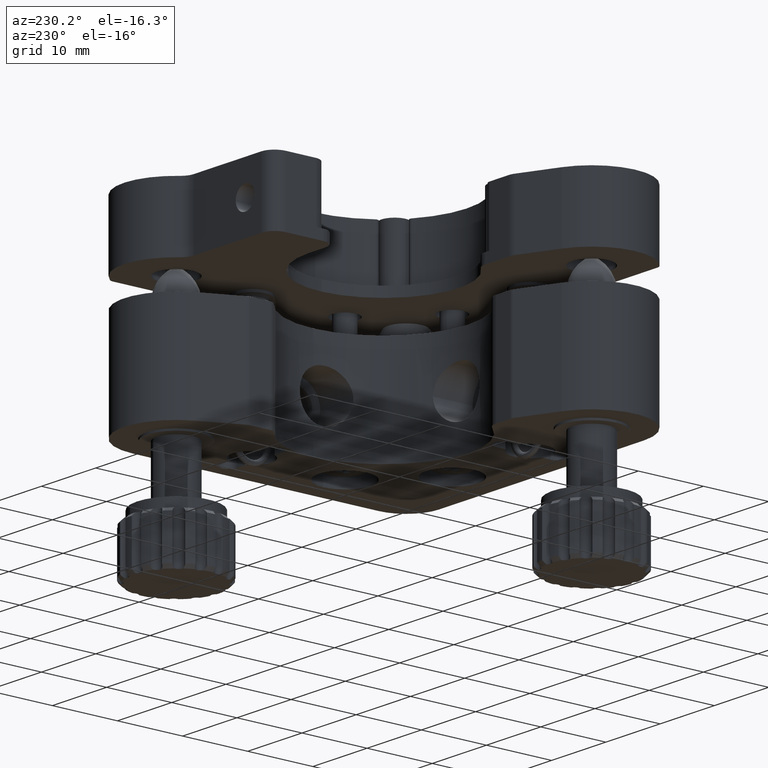
[diagram: clean part render]
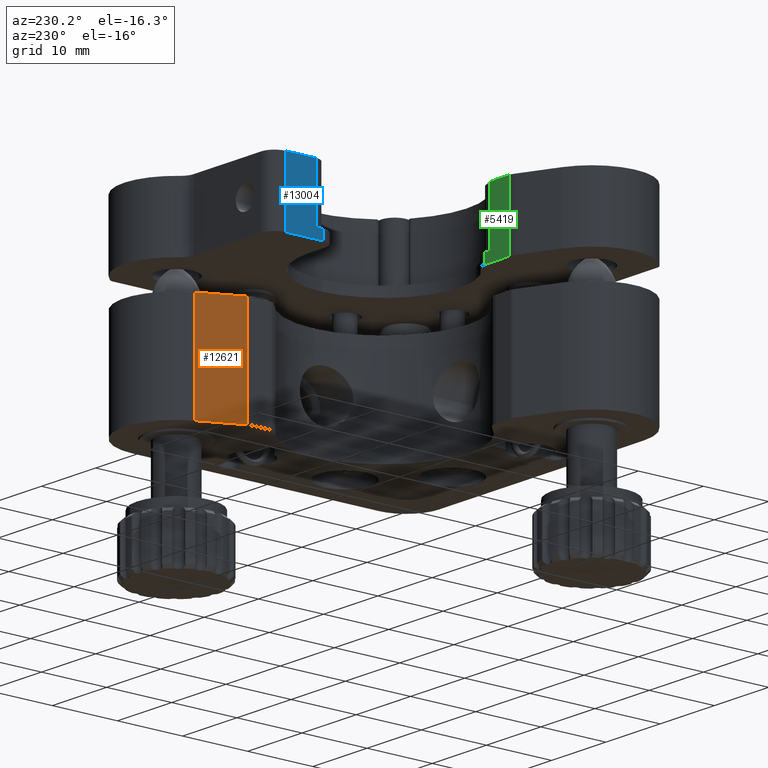
[diagram: same view with three faces highlighted in distinct colors, each labeled with its STEP entity id]
A machine part, auxiliary view with three faces highlighted in distinct colors.
Their STEP definitions:

[orange] entity #12621 — the highlighted planar face has unit normal (-0.9135, 0.4067, 0).
#315 = VERTEX_POINT ( 'NONE', #25072 ) ;
#524 = EDGE_CURVE ( 'NONE', #12687, #24036, #21961, .T. ) ;
#1168 = CARTESIAN_POINT ( 'NONE',  ( 24.78039112547795500, 56.12034572280080600, 37.86366457255799400 ) ) ;
#3830 = DIRECTION ( 'NONE',  ( -0.4067366430758018200, -0.9135454576426002000, -0.0000000000000000000 ) ) ;
#4767 = CARTESIAN_POINT ( 'NONE',  ( 27.38557292197974700, 61.97167984044965300, 22.06366457255799000 ) ) ;
#4864 = ORIENTED_EDGE ( 'NONE', *, *, #12959, .T. ) ;
#5148 = EDGE_CURVE ( 'NONE', #315, #12687, #9177, .T. ) ;
#9177 = LINE ( 'NONE', #17924, #32911 ) ;
#9242 = ORIENTED_EDGE ( 'NONE', *, *, #33659, .T. ) ;
#9769 = ORIENTED_EDGE ( 'NONE', *, *, #524, .F. ) ;
#10544 = DIRECTION ( 'NONE',  ( -0.4067366430758017600, -0.9135454576426002000, 0.0000000000000000000 ) ) ;
#12621 = ADVANCED_FACE ( 'NONE', ( #33894 ), #14204, .T. ) ;
#12687 = VERTEX_POINT ( 'NONE', #27786 ) ;
#12959 = EDGE_CURVE ( 'NONE', #18822, #24036, #15041, .T. ) ;
#14166 = VECTOR ( 'NONE', #23000, 1000.000000000000000 ) ;
#14204 = PLANE ( 'NONE',  #20791 ) ;
#15041 = LINE ( 'NONE', #23582, #17425 ) ;
#17001 = CARTESIAN_POINT ( 'NONE',  ( 27.38557292197974700, 61.97167984044965300, 37.86366457255799400 ) ) ;
#17425 = VECTOR ( 'NONE', #10544, 1000.000000000000200 ) ;
#17924 = CARTESIAN_POINT ( 'NONE',  ( 24.78039112547795500, 56.12034572280080600, 37.86366457255799400 ) ) ;
#17956 = DIRECTION ( 'NONE',  ( -0.4067366430758017600, -0.9135454576426002000, 0.0000000000000000000 ) ) ;
#18822 = VERTEX_POINT ( 'NONE', #4767 ) ;
#19583 = DIRECTION ( 'NONE',  ( -0.9135454576426002000, 0.4067366430758018200, 0.0000000000000000000 ) ) ;
#19762 = DIRECTION ( 'NONE',  ( 0.0000000000000000000, 0.0000000000000000000, -1.000000000000000000 ) ) ;
#20791 = AXIS2_PLACEMENT_3D ( 'NONE', #1168, #19583, #3830 ) ;
#21961 = LINE ( 'NONE', #24895, #14166 ) ;
#22807 = ORIENTED_EDGE ( 'NONE', *, *, #5148, .F. ) ;
#23000 = DIRECTION ( 'NONE',  ( 0.0000000000000000000, 0.0000000000000000000, -1.000000000000000000 ) ) ;
#23582 = CARTESIAN_POINT ( 'NONE',  ( 24.78039112547795500, 56.12034572280080600, 22.06366457255799000 ) ) ;
#23982 = CARTESIAN_POINT ( 'NONE',  ( 24.78039112547795500, 56.12034572280080600, 22.06366457255799000 ) ) ;
#24036 = VERTEX_POINT ( 'NONE', #23982 ) ;
#24895 = CARTESIAN_POINT ( 'NONE',  ( 24.78039112547795500, 56.12034572280080600, 37.86366457255799400 ) ) ;
#25072 = CARTESIAN_POINT ( 'NONE',  ( 27.38557292197974700, 61.97167984044965300, 37.86366457255799400 ) ) ;
#26810 = VECTOR ( 'NONE', #19762, 1000.000000000000000 ) ;
#27786 = CARTESIAN_POINT ( 'NONE',  ( 24.78039112547795500, 56.12034572280080600, 37.86366457255799400 ) ) ;
#32911 = VECTOR ( 'NONE', #17956, 1000.000000000000200 ) ;
#33659 = EDGE_CURVE ( 'NONE', #315, #18822, #33760, .T. ) ;
#33760 = LINE ( 'NONE', #17001, #26810 ) ;
#33894 = FACE_OUTER_BOUND ( 'NONE', #33944, .T. ) ;
#33944 = EDGE_LOOP ( 'NONE', ( #4864, #9769, #22807, #9242 ) ) ;

[blue] entity #13004 — the highlighted planar face has unit normal (-1, 0, 0).
#1266 = CARTESIAN_POINT ( 'NONE',  ( 12.19393658312054800, 54.91778669584324700, 42.06366457255799000 ) ) ;
#1354 = VECTOR ( 'NONE', #23221, 1000.000000000000000 ) ;
#2173 = DIRECTION ( 'NONE',  ( -0.0000000000000000000, -0.0000000000000000000, 1.000000000000000000 ) ) ;
#2564 = EDGE_CURVE ( 'NONE', #17787, #13961, #25487, .T. ) ;
#2963 = DIRECTION ( 'NONE',  ( 0.0000000000000000000, 0.0000000000000000000, 1.000000000000000000 ) ) ;
#3545 = EDGE_CURVE ( 'NONE', #21243, #19447, #9602, .T. ) ;
#3687 = EDGE_CURVE ( 'NONE', #26530, #19447, #5486, .T. ) ;
#3722 = VECTOR ( 'NONE', #15012, 1000.000000000000000 ) ;
#4416 = ORIENTED_EDGE ( 'NONE', *, *, #21665, .F. ) ;
#4837 = CARTESIAN_POINT ( 'NONE',  ( 12.19393658312054800, 55.91778669584325500, 43.56366457255799000 ) ) ;
#5486 = LINE ( 'NONE', #32552, #31680 ) ;
#6354 = CARTESIAN_POINT ( 'NONE',  ( 12.19393658312055000, 60.71778669584323800, 52.06366457255799000 ) ) ;
#7376 = EDGE_LOOP ( 'NONE', ( #21430, #4416, #30709, #31416, #19062, #14563 ) ) ;
#7843 = CARTESIAN_POINT ( 'NONE',  ( 12.19393658312055000, 60.71778669584323800, 42.06366457255799000 ) ) ;
#8403 = LINE ( 'NONE', #7843, #16249 ) ;
#8747 = VECTOR ( 'NONE', #2173, 1000.000000000000000 ) ;
#9224 = CARTESIAN_POINT ( 'NONE',  ( 12.19393658312054800, 55.91778669584325500, 43.56366457255799000 ) ) ;
#9602 = LINE ( 'NONE', #4837, #29641 ) ;
#10756 = CARTESIAN_POINT ( 'NONE',  ( 12.19393658312055000, 60.71778669584323800, 42.06366457255799000 ) ) ;
#13004 = ADVANCED_FACE ( 'NONE', ( #23605 ), #33972, .T. ) ;
#13277 = CARTESIAN_POINT ( 'NONE',  ( 12.19393658312055000, 60.71778669584323800, 42.06366457255799000 ) ) ;
#13390 = DIRECTION ( 'NONE',  ( 0.0000000000000000000, 0.0000000000000000000, 1.000000000000000000 ) ) ;
#13516 = CARTESIAN_POINT ( 'NONE',  ( 12.19393658312054800, 55.91778669584325500, 52.06366457255799000 ) ) ;
#13712 = VERTEX_POINT ( 'NONE', #13516 ) ;
#13961 = VERTEX_POINT ( 'NONE', #6354 ) ;
#14563 = ORIENTED_EDGE ( 'NONE', *, *, #3545, .F. ) ;
#15012 = DIRECTION ( 'NONE',  ( 0.0000000000000000000, 0.0000000000000000000, 1.000000000000000000 ) ) ;
#15799 = LINE ( 'NONE', #33559, #8747 ) ;
#16249 = VECTOR ( 'NONE', #26185, 1000.000000000000000 ) ;
#17787 = VERTEX_POINT ( 'NONE', #24786 ) ;
#19062 = ORIENTED_EDGE ( 'NONE', *, *, #3687, .T. ) ;
#19447 = VERTEX_POINT ( 'NONE', #19770 ) ;
#19770 = CARTESIAN_POINT ( 'NONE',  ( 12.19393658312054800, 54.91778669584324700, 43.56366457255799000 ) ) ;
#21243 = VERTEX_POINT ( 'NONE', #9224 ) ;
#21430 = ORIENTED_EDGE ( 'NONE', *, *, #27504, .T. ) ;
#21532 = LINE ( 'NONE', #23327, #1354 ) ;
#21665 = EDGE_CURVE ( 'NONE', #13961, #13712, #21532, .T. ) ;
#23221 = DIRECTION ( 'NONE',  ( 0.0000000000000000000, -1.000000000000000000, 0.0000000000000000000 ) ) ;
#23327 = CARTESIAN_POINT ( 'NONE',  ( 12.19393658312055000, 60.71778669584323800, 52.06366457255799000 ) ) ;
#23605 = FACE_OUTER_BOUND ( 'NONE', #7376, .T. ) ;
#24786 = CARTESIAN_POINT ( 'NONE',  ( 12.19393658312055000, 60.71778669584323800, 42.06366457255799000 ) ) ;
#25487 = LINE ( 'NONE', #13277, #3722 ) ;
#26185 = DIRECTION ( 'NONE',  ( 0.0000000000000000000, -1.000000000000000000, 0.0000000000000000000 ) ) ;
#26490 = AXIS2_PLACEMENT_3D ( 'NONE', #10756, #29041, #13390 ) ;
#26530 = VERTEX_POINT ( 'NONE', #1266 ) ;
#26865 = EDGE_CURVE ( 'NONE', #17787, #26530, #8403, .T. ) ;
#27504 = EDGE_CURVE ( 'NONE', #21243, #13712, #15799, .T. ) ;
#29041 = DIRECTION ( 'NONE',  ( -1.000000000000000000, 0.0000000000000000000, 0.0000000000000000000 ) ) ;
#29641 = VECTOR ( 'NONE', #29976, 1000.000000000000000 ) ;
#29976 = DIRECTION ( 'NONE',  ( 0.0000000000000000000, -1.000000000000000000, 0.0000000000000000000 ) ) ;
#30709 = ORIENTED_EDGE ( 'NONE', *, *, #2564, .F. ) ;
#31416 = ORIENTED_EDGE ( 'NONE', *, *, #26865, .T. ) ;
#31680 = VECTOR ( 'NONE', #2963, 1000.000000000000000 ) ;
#32552 = CARTESIAN_POINT ( 'NONE',  ( 12.19393658312054800, 54.91778669584324700, 42.06366457255799000 ) ) ;
#33559 = CARTESIAN_POINT ( 'NONE',  ( 12.19393658312054800, 55.91778669584325500, 43.56366457255799000 ) ) ;
#33972 = PLANE ( 'NONE',  #26490 ) ;

[green] entity #5419 — the highlighted planar face has unit normal (0, 1, -0).
#656 = ORIENTED_EDGE ( 'NONE', *, *, #19734, .F. ) ;
#1456 = DIRECTION ( 'NONE',  ( -1.000000000000000000, 7.724296037066135200E-016, 0.0000000000000000000 ) ) ;
#2767 = ORIENTED_EDGE ( 'NONE', *, *, #30878, .T. ) ;
#3143 = VERTEX_POINT ( 'NONE', #29475 ) ;
#3358 = FACE_OUTER_BOUND ( 'NONE', #11136, .T. ) ;
#4135 = VERTEX_POINT ( 'NONE', #9684 ) ;
#4946 = VERTEX_POINT ( 'NONE', #18298 ) ;
#4995 = CARTESIAN_POINT ( 'NONE',  ( 6.707756990591014400, 33.91778669584324700, 43.56366457255799000 ) ) ;
#5044 = LINE ( 'NONE', #12891, #32881 ) ;
#5419 = ADVANCED_FACE ( 'NONE', ( #3358 ), #31681, .T. ) ;
#5886 = ORIENTED_EDGE ( 'NONE', *, *, #19302, .F. ) ;
#5945 = LINE ( 'NONE', #31153, #22375 ) ;
#6048 = VECTOR ( 'NONE', #7667, 1000.000000000000000 ) ;
#6444 = CARTESIAN_POINT ( 'NONE',  ( 7.602273536495104600, 33.91778669584324700, 42.06366457255799000 ) ) ;
#7667 = DIRECTION ( 'NONE',  ( 0.0000000000000000000, 0.0000000000000000000, 1.000000000000000000 ) ) ;
#8040 = VECTOR ( 'NONE', #27418, 1000.000000000000000 ) ;
#8237 = ORIENTED_EDGE ( 'NONE', *, *, #33287, .F. ) ;
#8839 = LINE ( 'NONE', #6444, #8040 ) ;
#9006 = LINE ( 'NONE', #14587, #14345 ) ;
#9684 = CARTESIAN_POINT ( 'NONE',  ( 3.110670760908852600, 33.91778669584324700, 52.06366457255799000 ) ) ;
#11136 = EDGE_LOOP ( 'NONE', ( #13165, #8237, #656, #5886, #2767, #30020 ) ) ;
#12340 = EDGE_CURVE ( 'NONE', #22472, #4135, #20026, .T. ) ;
#12755 = VERTEX_POINT ( 'NONE', #27897 ) ;
#12891 = CARTESIAN_POINT ( 'NONE',  ( 7.602273536495104600, 33.91778669584324700, 52.06366457255799000 ) ) ;
#12911 = DIRECTION ( 'NONE',  ( -1.000000000000000000, -0.0000000000000000000, -0.0000000000000000000 ) ) ;
#13165 = ORIENTED_EDGE ( 'NONE', *, *, #33882, .F. ) ;
#14345 = VECTOR ( 'NONE', #1456, 1000.000000000000000 ) ;
#14587 = CARTESIAN_POINT ( 'NONE',  ( 7.602273536495104600, 33.91778669584324700, 42.06366457255799000 ) ) ;
#15542 = DIRECTION ( 'NONE',  ( -1.000000000000000000, 7.724296037066135200E-016, 0.0000000000000000000 ) ) ;
#15822 = AXIS2_PLACEMENT_3D ( 'NONE', #30286, #30177, #31455 ) ;
#15871 = CARTESIAN_POINT ( 'NONE',  ( 3.110670760908852600, 33.91778669584324700, 42.06366457255799000 ) ) ;
#17219 = VERTEX_POINT ( 'NONE', #30056 ) ;
#18298 = CARTESIAN_POINT ( 'NONE',  ( 7.602273536495104600, 33.91778669584324700, 43.56366457255799000 ) ) ;
#19302 = EDGE_CURVE ( 'NONE', #12755, #4946, #8839, .T. ) ;
#19734 = EDGE_CURVE ( 'NONE', #4946, #17219, #5945, .T. ) ;
#20026 = LINE ( 'NONE', #15871, #6048 ) ;
#20329 = LINE ( 'NONE', #4995, #30902 ) ;
#20718 = DIRECTION ( 'NONE',  ( -0.0000000000000000000, -0.0000000000000000000, 1.000000000000000000 ) ) ;
#22375 = VECTOR ( 'NONE', #12911, 1000.000000000000000 ) ;
#22472 = VERTEX_POINT ( 'NONE', #24851 ) ;
#24851 = CARTESIAN_POINT ( 'NONE',  ( 3.110670760908852600, 33.91778669584324700, 42.06366457255799000 ) ) ;
#27418 = DIRECTION ( 'NONE',  ( 0.0000000000000000000, 0.0000000000000000000, 1.000000000000000000 ) ) ;
#27897 = CARTESIAN_POINT ( 'NONE',  ( 7.602273536495104600, 33.91778669584324700, 42.06366457255799000 ) ) ;
#29475 = CARTESIAN_POINT ( 'NONE',  ( 6.707756990591014400, 33.91778669584324700, 52.06366457255799000 ) ) ;
#30020 = ORIENTED_EDGE ( 'NONE', *, *, #12340, .T. ) ;
#30056 = CARTESIAN_POINT ( 'NONE',  ( 6.707756990591014400, 33.91778669584324700, 43.56366457255799000 ) ) ;
#30177 = DIRECTION ( 'NONE',  ( 7.724296037066135200E-016, 1.000000000000000000, -0.0000000000000000000 ) ) ;
#30286 = CARTESIAN_POINT ( 'NONE',  ( 7.602273536495104600, 33.91778669584324700, 42.06366457255799000 ) ) ;
#30878 = EDGE_CURVE ( 'NONE', #12755, #22472, #9006, .T. ) ;
#30902 = VECTOR ( 'NONE', #20718, 1000.000000000000000 ) ;
#31153 = CARTESIAN_POINT ( 'NONE',  ( 6.707756990591014400, 33.91778669584324700, 43.56366457255799000 ) ) ;
#31455 = DIRECTION ( 'NONE',  ( -1.000000000000000000, 7.724296037066135200E-016, 0.0000000000000000000 ) ) ;
#31681 = PLANE ( 'NONE',  #15822 ) ;
#32881 = VECTOR ( 'NONE', #15542, 1000.000000000000000 ) ;
#33287 = EDGE_CURVE ( 'NONE', #17219, #3143, #20329, .T. ) ;
#33882 = EDGE_CURVE ( 'NONE', #3143, #4135, #5044, .T. ) ;